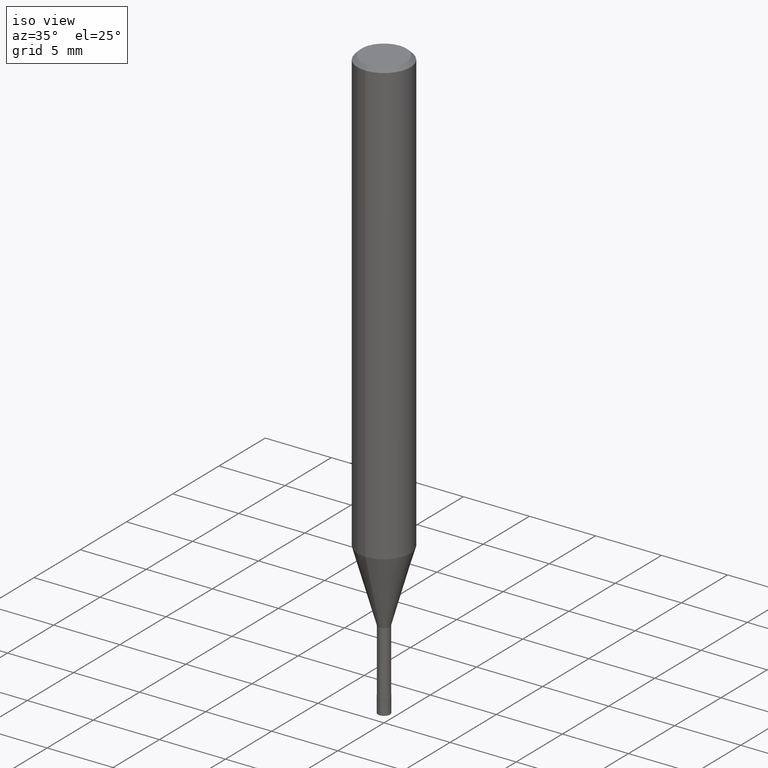
[diagram: clean part render]
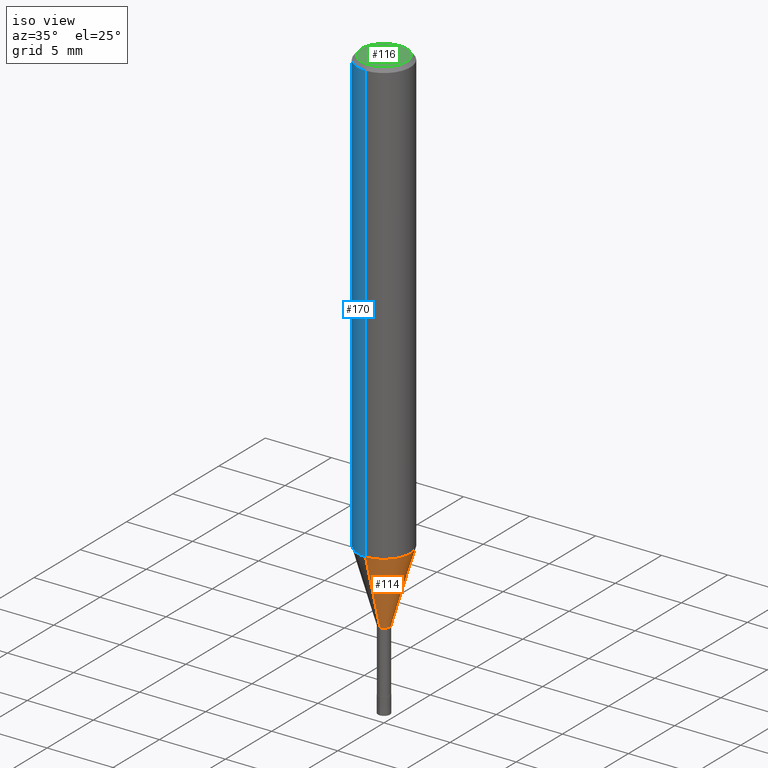
[diagram: same view with three faces highlighted in distinct colors, each labeled with its STEP entity id]
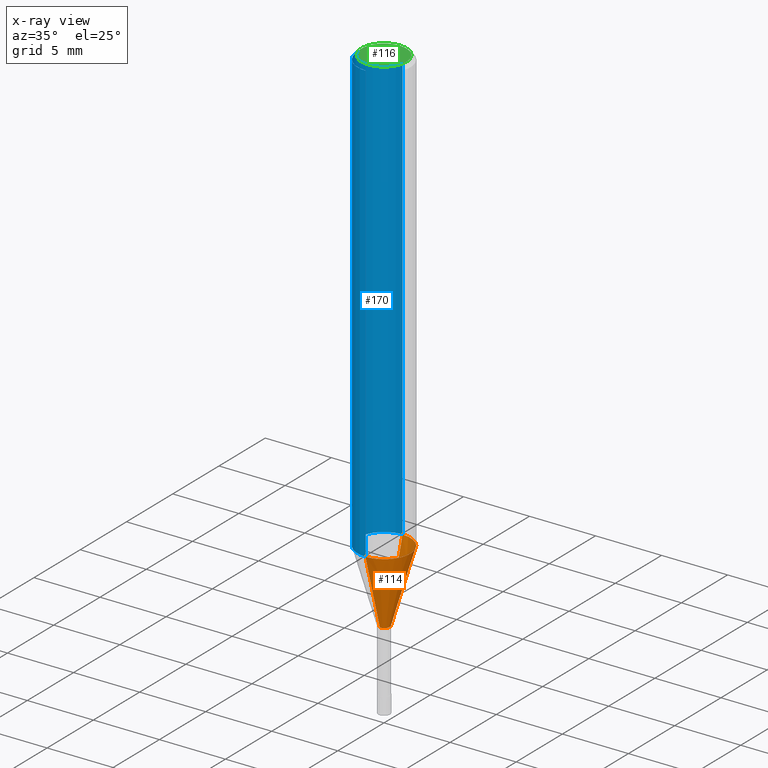
[diagram: x-ray of the same camera — body ghosted, the three highlighted faces saturated]
A machine part, iso view with three faces highlighted in distinct colors.
The next image is the same camera in x-ray (body ghosted, the three faces saturated) — at least one of them is partly hidden behind the body in this view.
Their STEP definitions:

[orange] entity #114 — the highlighted conical surface has half-angle 16.001 deg.
#96=EDGE_CURVE('',#204,#164,#233,.T.);
#114=ADVANCED_FACE('',(#256),#257,.T.);
#122=EDGE_CURVE('',#126,#154,#267,.T.);
#124=EDGE_CURVE('',#204,#126,#269,.T.);
#126=VERTEX_POINT('',#271);
#130=EDGE_CURVE('',#154,#164,#276,.T.);
#154=VERTEX_POINT('',#301);
#164=VERTEX_POINT('',#312);
#204=VERTEX_POINT('',#357);
#233=CIRCLE('',#382,1.99995);
#256=FACE_OUTER_BOUND('',#408,.T.);
#257=CONICAL_SURFACE('',#409,1.21995,0.279270532486472);
#267=CIRCLE('',#421,0.43995);
#269=LINE('',#424,#425);
#271=CARTESIAN_POINT('',(0.0,0.43995,-39.0));
#276=LINE('',#433,#434);
#301=CARTESIAN_POINT('',(5.38765565364155E-017,-0.43995,-39.0));
#312=CARTESIAN_POINT('',(2.44915147732706E-016,-1.99995,-33.56));
#357=CARTESIAN_POINT('',(0.0,1.99995,-33.56));
#382=AXIS2_PLACEMENT_3D('',#546,#547,#548);
#408=EDGE_LOOP('',(#597,#598,#599,#600));
#409=AXIS2_PLACEMENT_3D('',#601,#602,#603);
#421=AXIS2_PLACEMENT_3D('',#621,#622,#623);
#424=CARTESIAN_POINT('',(-1.49395852134561E-016,1.21995,-36.28));
#425=VECTOR('',#624,1.0);
#433=CARTESIAN_POINT('',(1.49395852134561E-016,-1.21995,-36.28));
#434=VECTOR('',#633,1.0);
#546=CARTESIAN_POINT('',(0.0,0.0,-33.56));
#547=DIRECTION('',(0.0,0.0,-1.0));
#548=DIRECTION('',(0.0,1.0,0.0));
#597=ORIENTED_EDGE('',*,*,#124,.F.);
#598=ORIENTED_EDGE('',*,*,#96,.T.);
#599=ORIENTED_EDGE('',*,*,#130,.F.);
#600=ORIENTED_EDGE('',*,*,#122,.F.);
#601=CARTESIAN_POINT('',(0.0,0.0,-36.28));
#602=DIRECTION('',(-0.0,-0.0,1.0));
#603=DIRECTION('',(0.0,1.0,0.0));
#621=CARTESIAN_POINT('',(0.0,0.0,-39.0));
#622=DIRECTION('',(0.0,0.0,-1.0));
#623=DIRECTION('',(0.0,1.0,0.0));
#624=DIRECTION('',(3.37568272216048E-017,-0.275654516377767,-0.96125677506093));
#633=DIRECTION('',(3.37568272216048E-017,-0.275654516377767,0.96125677506093));

[blue] entity #170 — the highlighted cylindrical surface (edge-blend (fillet) strip) has radius 2 mm, axis along (-0, -0, 1).
#92=EDGE_CURVE('',#182,#184,#229,.T.);
#94=EDGE_CURVE('',#184,#206,#231,.T.);
#104=EDGE_CURVE('',#136,#206,#243,.T.);
#136=VERTEX_POINT('',#283);
#170=ADVANCED_FACE('',(#320),#321,.T.);
#182=VERTEX_POINT('',#335);
#184=VERTEX_POINT('',#337);
#202=EDGE_CURVE('',#136,#182,#355,.T.);
#206=VERTEX_POINT('',#359);
#229=CIRCLE('',#375,2.0);
#231=LINE('',#378,#379);
#243=CIRCLE('',#394,2.0);
#283=CARTESIAN_POINT('',(2.44921270764475E-016,-2.0,-33.56));
#320=FACE_OUTER_BOUND('',#488,.T.);
#321=CYLINDRICAL_SURFACE('',#489,2.0);
#335=CARTESIAN_POINT('',(2.44921270764475E-016,-2.0,-0.299999999999997));
#337=CARTESIAN_POINT('',(0.0,2.0,-0.299999999999997));
#355=LINE('',#531,#532);
#359=CARTESIAN_POINT('',(0.0,2.0,-33.56));
#375=AXIS2_PLACEMENT_3D('',#542,#543,#544);
#378=CARTESIAN_POINT('',(-2.44921270764475E-016,2.0,-16.93));
#379=VECTOR('',#545,1.0);
#394=AXIS2_PLACEMENT_3D('',#568,#569,#570);
#488=EDGE_LOOP('',(#676,#677,#678,#679));
#489=AXIS2_PLACEMENT_3D('',#680,#681,#682);
#531=CARTESIAN_POINT('',(2.44921270764475E-016,-2.0,-16.93));
#532=VECTOR('',#712,1.0);
#542=CARTESIAN_POINT('',(0.0,0.0,-0.299999999999997));
#543=DIRECTION('',(0.0,0.0,-1.0));
#544=DIRECTION('',(0.0,1.0,0.0));
#545=DIRECTION('',(0.0,0.0,-1.0));
#568=CARTESIAN_POINT('',(0.0,0.0,-33.56));
#569=DIRECTION('',(0.0,0.0,-1.0));
#570=DIRECTION('',(0.0,1.0,0.0));
#676=ORIENTED_EDGE('',*,*,#94,.T.);
#677=ORIENTED_EDGE('',*,*,#104,.F.);
#678=ORIENTED_EDGE('',*,*,#202,.T.);
#679=ORIENTED_EDGE('',*,*,#92,.T.);
#680=CARTESIAN_POINT('',(0.0,0.0,-16.93));
#681=DIRECTION('',(-0.0,-0.0,1.0));
#682=DIRECTION('',(0.0,1.0,0.0));
#712=DIRECTION('',(-0.0,-0.0,1.0));

[green] entity #116 — the highlighted planar face has unit normal (-0, 0, 1).
#98=EDGE_CURVE('',#166,#194,#235,.T.);
#108=EDGE_CURVE('',#194,#166,#248,.T.);
#116=ADVANCED_FACE('',(#259),#260,.T.);
#166=VERTEX_POINT('',#314);
#194=VERTEX_POINT('',#347);
#235=CIRCLE('',#385,1.7);
#248=CIRCLE('',#400,1.7);
#259=FACE_OUTER_BOUND('',#411,.T.);
#260=PLANE('',#412);
#314=CARTESIAN_POINT('',(0.0,1.7,0.0));
#347=CARTESIAN_POINT('',(2.08183080149804E-016,-1.7,0.0));
#385=AXIS2_PLACEMENT_3D('',#549,#550,#551);
#400=AXIS2_PLACEMENT_3D('',#579,#580,#581);
#411=EDGE_LOOP('',(#605,#606));
#412=AXIS2_PLACEMENT_3D('',#607,#608,#609);
#549=CARTESIAN_POINT('',(0.0,0.0,0.0));
#550=DIRECTION('',(0.0,0.0,-1.0));
#551=DIRECTION('',(0.0,1.0,0.0));
#579=CARTESIAN_POINT('',(0.0,0.0,0.0));
#580=DIRECTION('',(0.0,0.0,-1.0));
#581=DIRECTION('',(0.0,1.0,0.0));
#605=ORIENTED_EDGE('',*,*,#98,.F.);
#606=ORIENTED_EDGE('',*,*,#108,.F.);
#607=CARTESIAN_POINT('',(0.0,0.85,0.0));
#608=DIRECTION('',(-0.0,0.0,1.0));
#609=DIRECTION('',(0.0,-1.0,0.0));